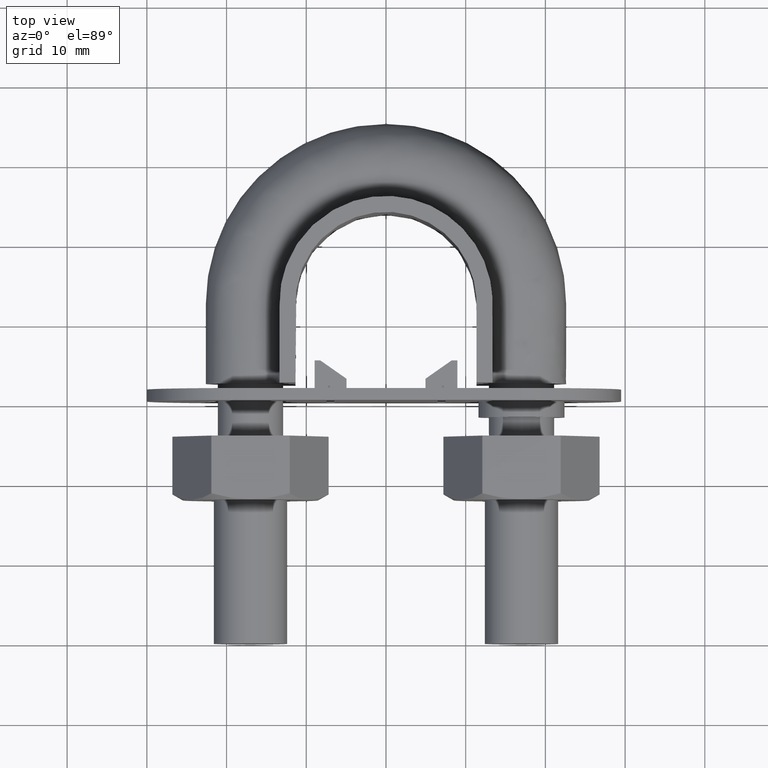
[diagram: clean part render]
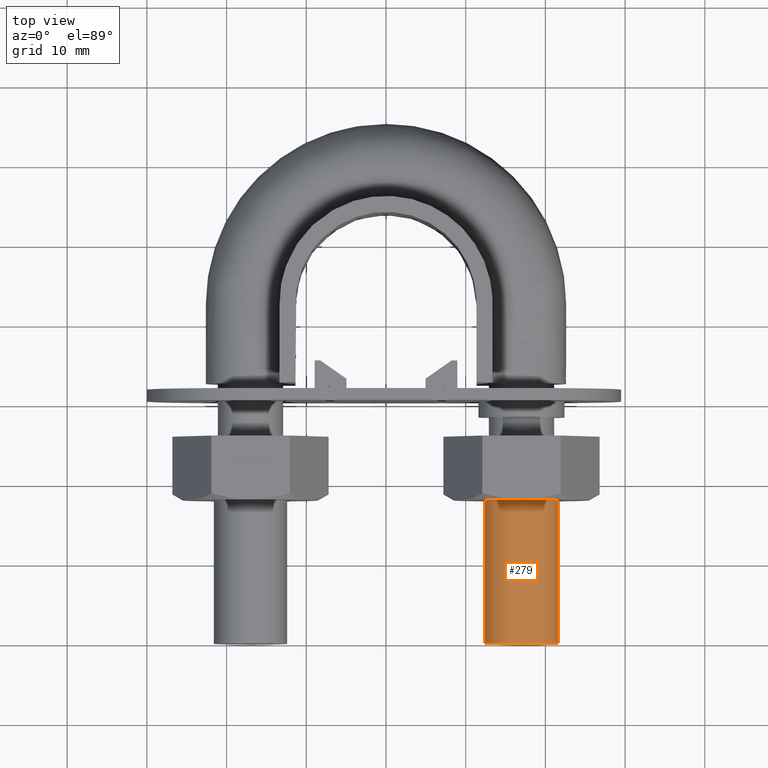
[diagram: same view with one face highlighted and labeled with its STEP entity id]
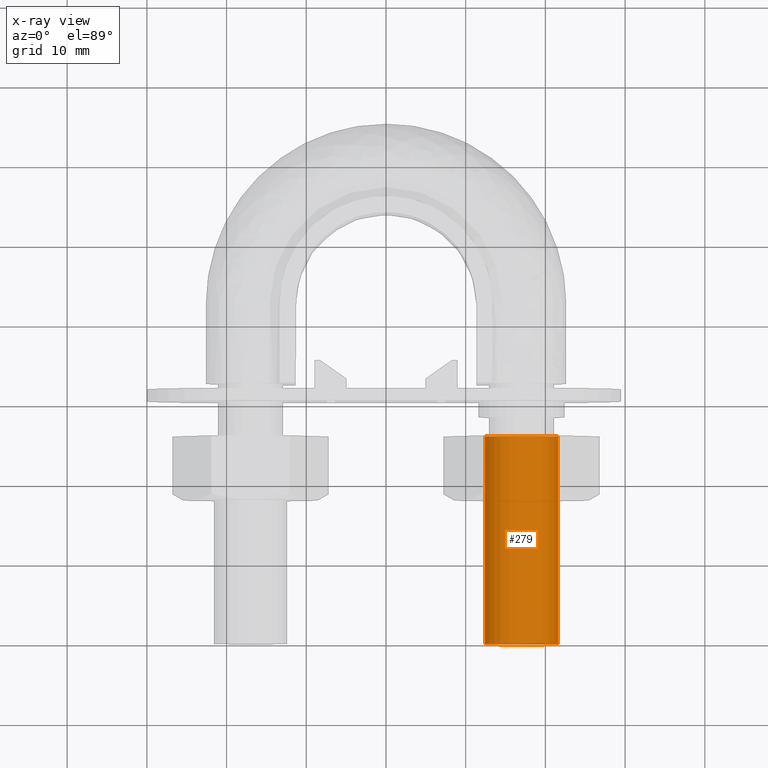
[diagram: x-ray of the same camera — body ghosted, the highlighted face saturated]
A machine part, top view. The second image highlights one B-rep face of the part: STEP entity #279.
The next image is the same camera in x-ray: the body ghosted, the highlighted face saturated — about 0% of this face is hidden behind the body in this view.
In plain terms, the highlighted cylindrical surface (bore or boss wall) has radius 4.6 mm, axis along (0, 1, -0).
Its self-contained STEP definition (entity closure, byte-faithful):
#279 = ADVANCED_FACE( '', ( #411, #412 ), #413, .T. );
#411 = FACE_OUTER_BOUND( '', #1575, .T. );
#412 = FACE_OUTER_BOUND( '', #1576, .T. );
#413 = CYLINDRICAL_SURFACE( '', #1577, 4.60000000000000 );
#1575 = EDGE_LOOP( '', ( #1908 ) );
#1576 = EDGE_LOOP( '', ( #1909 ) );
#1577 = AXIS2_PLACEMENT_3D( '', #1910, #1911, #1912 );
#1908 = ORIENTED_EDGE( '', *, *, #2673, .T. );
#1909 = ORIENTED_EDGE( '', *, *, #2674, .F. );
#1910 = CARTESIAN_POINT( '', ( 17.0000000000000, 26.0000000000000, -8.10077103053503E-015 ) );
#1911 = DIRECTION( '', ( 2.44921270764475E-016, 1.00000000000000, -3.06151588455594E-016 ) );
#1912 = DIRECTION( '', ( 1.00000000000000, -2.44921270764475E-016, -1.09476442525376E-047 ) );
#2673 = EDGE_CURVE( '', #2939, #2939, #2940, .T. );
#2674 = EDGE_CURVE( '', #2941, #2941, #2942, .T. );
#2939 = VERTEX_POINT( '', #3535 );
#2940 = CIRCLE( '', #3536, 4.60000000000000 );
#2941 = VERTEX_POINT( '', #3537 );
#2942 = CIRCLE( '', #3538, 4.60000000000000 );
#3535 = CARTESIAN_POINT( '', ( 21.6000000000000, 26.0000000000000, -8.10077103053503E-015 ) );
#3536 = AXIS2_PLACEMENT_3D( '', #4161, #4162, #4163 );
#3537 = CARTESIAN_POINT( '', ( 21.6000000000000, -5.29029944851267E-015, -1.40829730689573E-016 ) );
#3538 = AXIS2_PLACEMENT_3D( '', #4164, #4165, #4166 );
#4161 = CARTESIAN_POINT( '', ( 17.0000000000000, 26.0000000000000, -8.10077103053503E-015 ) );
#4162 = DIRECTION( '', ( -2.44921270764475E-016, -1.00000000000000, 3.06151588455594E-016 ) );
#4163 = DIRECTION( '', ( 1.00000000000000, -2.44921270764475E-016, -1.09476442525376E-047 ) );
#4164 = CARTESIAN_POINT( '', ( 17.0000000000000, -4.16366160299608E-015, -1.40829730689573E-016 ) );
#4165 = DIRECTION( '', ( -2.44921270764475E-016, -1.00000000000000, 3.06151588455594E-016 ) );
#4166 = DIRECTION( '', ( 1.00000000000000, -2.44921270764475E-016, -1.09476442525376E-047 ) );